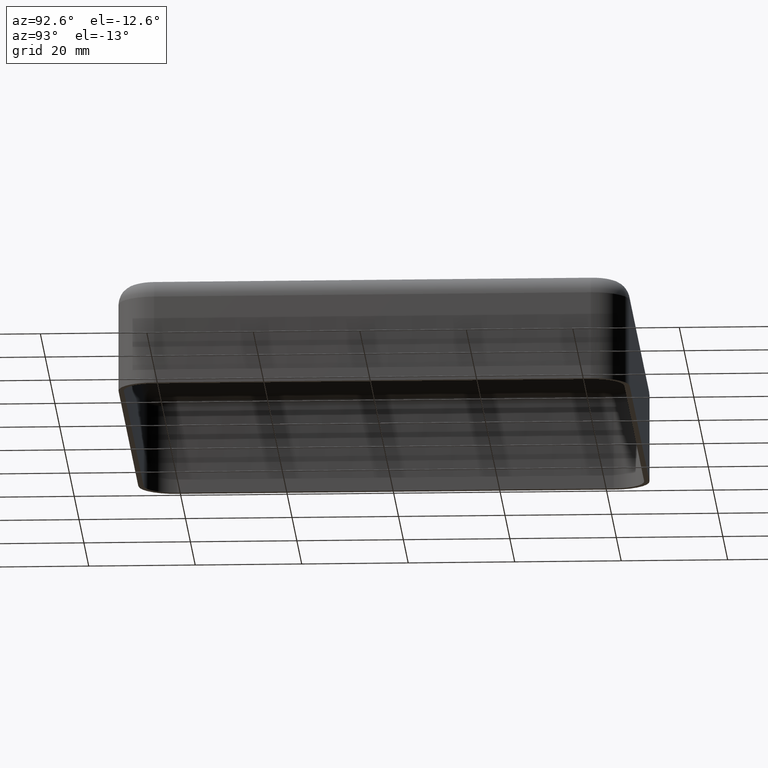
[diagram: clean part render]
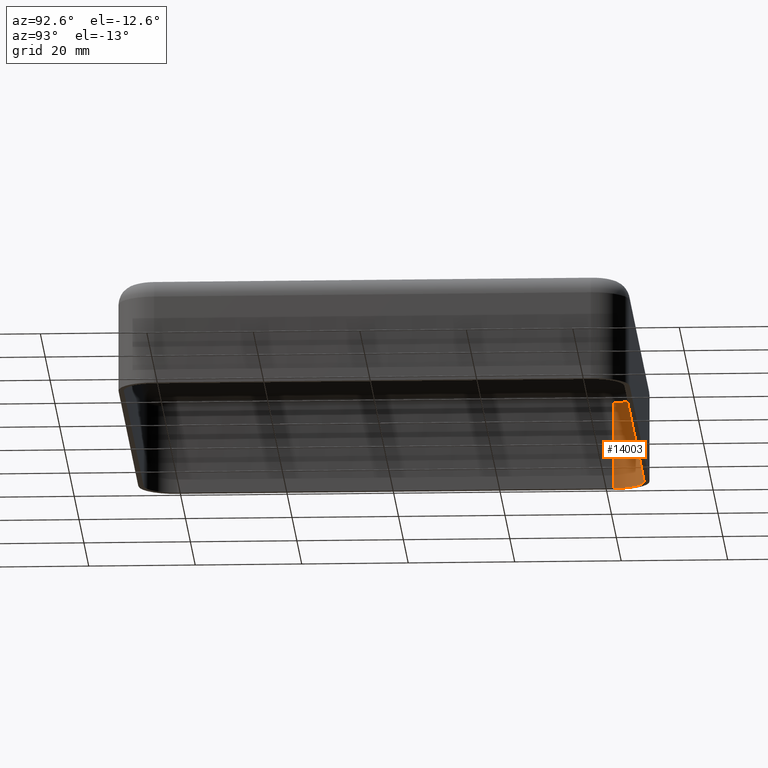
[diagram: same view with one face highlighted and labeled with its STEP entity id]
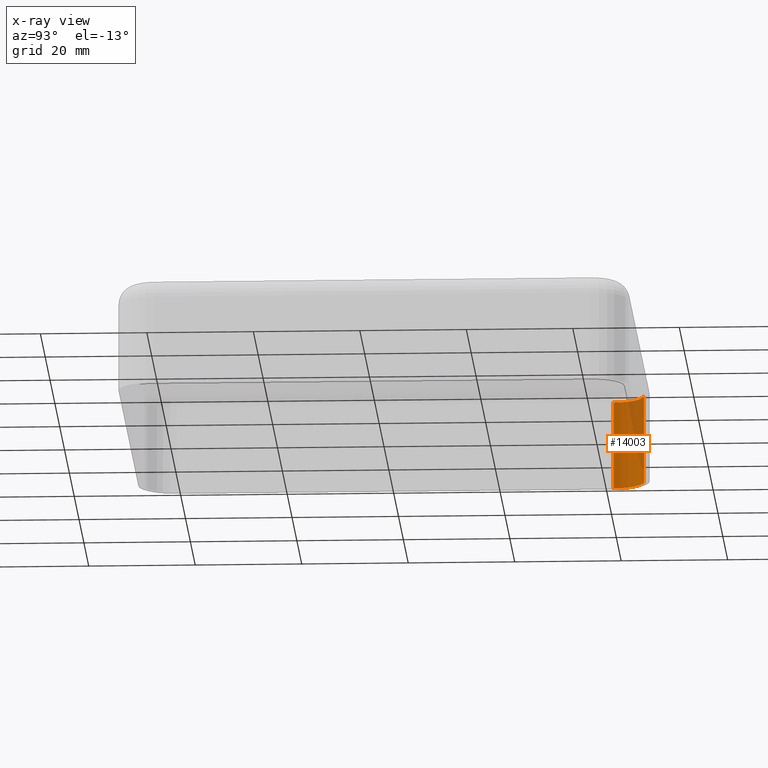
[diagram: x-ray of the same camera — body ghosted, the highlighted face saturated]
A machine part, auxiliary view. The second image highlights one B-rep face of the part: STEP entity #14003.
The next image is the same camera in x-ray: the body ghosted, the highlighted face saturated — about 25% of this face is hidden behind the body in this view.
In plain terms, the highlighted cylindrical surface (edge-blend (fillet) strip) has radius 6 mm, axis along (0, 0, -1).
Its self-contained STEP definition (entity closure, byte-faithful):
#1205 = FACE_OUTER_BOUND ( 'NONE', #13231, .T. ) ;
#1244 = CARTESIAN_POINT ( 'NONE',  ( -47.00000000000001421, 40.99999999999999289, 16.50000000000000000 ) ) ;
#1305 = DIRECTION ( 'NONE',  ( -1.000000000000000000, 0.000000000000000000, 0.000000000000000000 ) ) ;
#1745 = CYLINDRICAL_SURFACE ( 'NONE', #9808, 5.999999999999998224 ) ;
#1918 = AXIS2_PLACEMENT_3D ( 'NONE', #11428, #8056, #13748 ) ;
#2198 = CIRCLE ( 'NONE', #8524, 5.999999999999998224 ) ;
#2211 = CARTESIAN_POINT ( 'NONE',  ( -41.00000000000001421, 46.99999999999999289, 0.000000000000000000 ) ) ;
#3687 = ORIENTED_EDGE ( 'NONE', *, *, #5075, .T. ) ;
#3786 = LINE ( 'NONE', #5055, #4138 ) ;
#3898 = VERTEX_POINT ( 'NONE', #13629 ) ;
#4138 = VECTOR ( 'NONE', #11197, 1000.000000000000000 ) ;
#4302 = DIRECTION ( 'NONE',  ( -0.000000000000000000, -0.000000000000000000, -1.000000000000000000 ) ) ;
#4704 = DIRECTION ( 'NONE',  ( -0.000000000000000000, 0.000000000000000000, 1.000000000000000000 ) ) ;
#4987 = LINE ( 'NONE', #12251, #14534 ) ;
#5055 = CARTESIAN_POINT ( 'NONE',  ( -41.00000000000001421, 46.99999999999999289, 20.00000000000000000 ) ) ;
#5075 = EDGE_CURVE ( 'NONE', #11494, #5746, #2198, .T. ) ;
#5650 = DIRECTION ( 'NONE',  ( 0.000000000000000000, 0.000000000000000000, -1.000000000000000000 ) ) ;
#5746 = VERTEX_POINT ( 'NONE', #1244 ) ;
#6972 = CIRCLE ( 'NONE', #1918, 5.999999999999998224 ) ;
#7082 = CARTESIAN_POINT ( 'NONE',  ( -41.00000000000001421, 40.99999999999999289, 16.50000000000000000 ) ) ;
#7294 = ORIENTED_EDGE ( 'NONE', *, *, #11643, .T. ) ;
#7847 = CARTESIAN_POINT ( 'NONE',  ( -41.00000000000000711, 46.99999999999999289, 16.50000000000000000 ) ) ;
#7880 = EDGE_CURVE ( 'NONE', #8041, #11494, #3786, .T. ) ;
#8041 = VERTEX_POINT ( 'NONE', #2211 ) ;
#8056 = DIRECTION ( 'NONE',  ( 0.000000000000000000, -0.000000000000000000, -1.000000000000000000 ) ) ;
#8171 = CARTESIAN_POINT ( 'NONE',  ( -41.00000000000001421, 40.99999999999999289, 20.00000000000000000 ) ) ;
#8524 = AXIS2_PLACEMENT_3D ( 'NONE', #7082, #4704, #9251 ) ;
#9251 = DIRECTION ( 'NONE',  ( 1.000000000000000000, 0.000000000000000000, 0.000000000000000000 ) ) ;
#9424 = ORIENTED_EDGE ( 'NONE', *, *, #7880, .T. ) ;
#9808 = AXIS2_PLACEMENT_3D ( 'NONE', #8171, #5650, #1305 ) ;
#11197 = DIRECTION ( 'NONE',  ( -0.000000000000000000, 0.000000000000000000, 1.000000000000000000 ) ) ;
#11428 = CARTESIAN_POINT ( 'NONE',  ( -41.00000000000001421, 40.99999999999999289, 0.000000000000000000 ) ) ;
#11494 = VERTEX_POINT ( 'NONE', #7847 ) ;
#11643 = EDGE_CURVE ( 'NONE', #5746, #3898, #4987, .T. ) ;
#12225 = EDGE_CURVE ( 'NONE', #3898, #8041, #6972, .T. ) ;
#12251 = CARTESIAN_POINT ( 'NONE',  ( -47.00000000000001421, 40.99999999999999289, 20.00000000000000000 ) ) ;
#13231 = EDGE_LOOP ( 'NONE', ( #14595, #9424, #3687, #7294 ) ) ;
#13629 = CARTESIAN_POINT ( 'NONE',  ( -47.00000000000001421, 40.99999999999999289, 0.000000000000000000 ) ) ;
#13748 = DIRECTION ( 'NONE',  ( 1.000000000000000000, 0.000000000000000000, 0.000000000000000000 ) ) ;
#14003 = ADVANCED_FACE ( 'NONE', ( #1205 ), #1745, .F. ) ;
#14534 = VECTOR ( 'NONE', #4302, 1000.000000000000000 ) ;
#14595 = ORIENTED_EDGE ( 'NONE', *, *, #12225, .T. ) ;